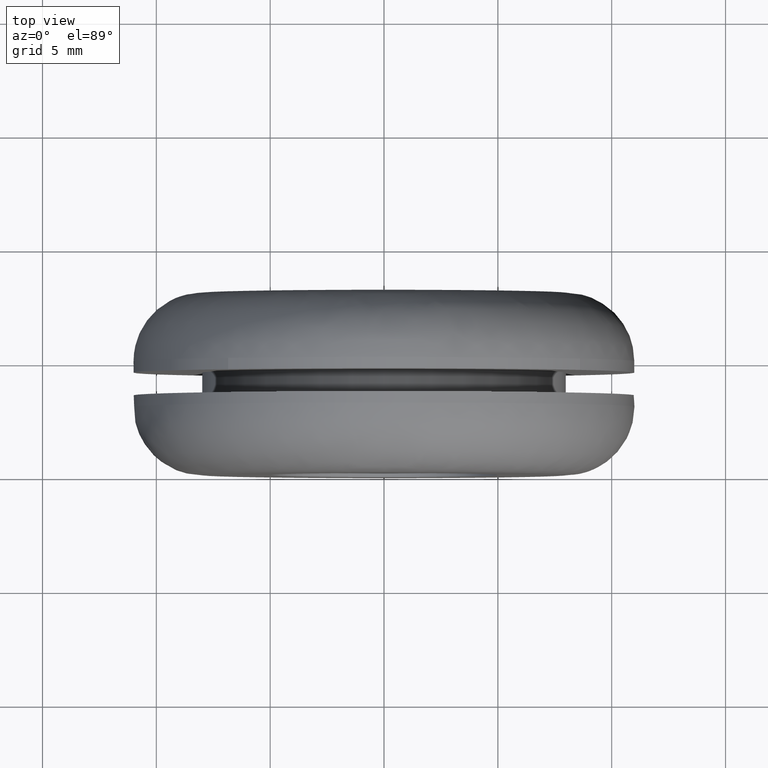
[diagram: clean part render]
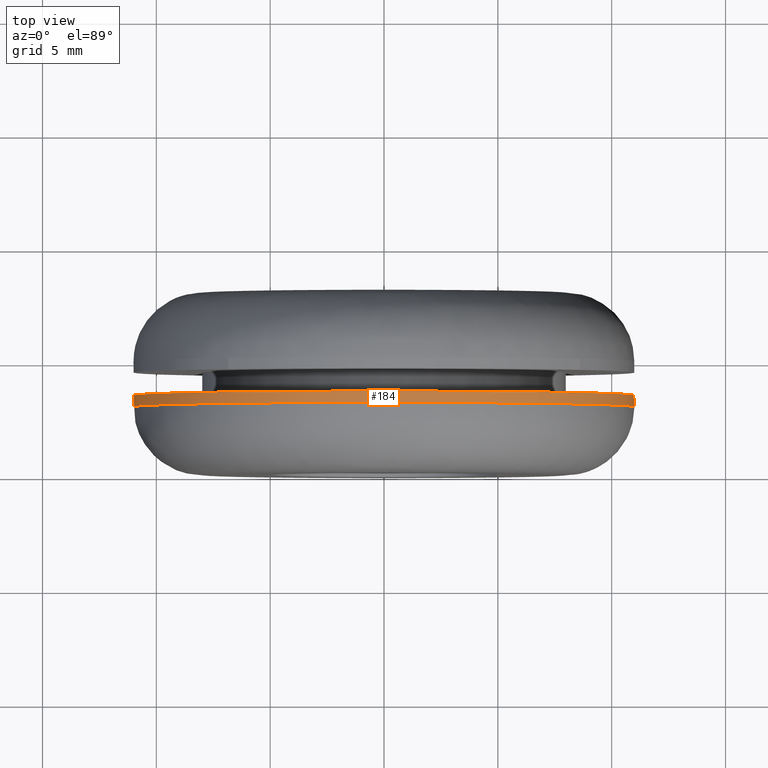
[diagram: same view with one face highlighted and labeled with its STEP entity id]
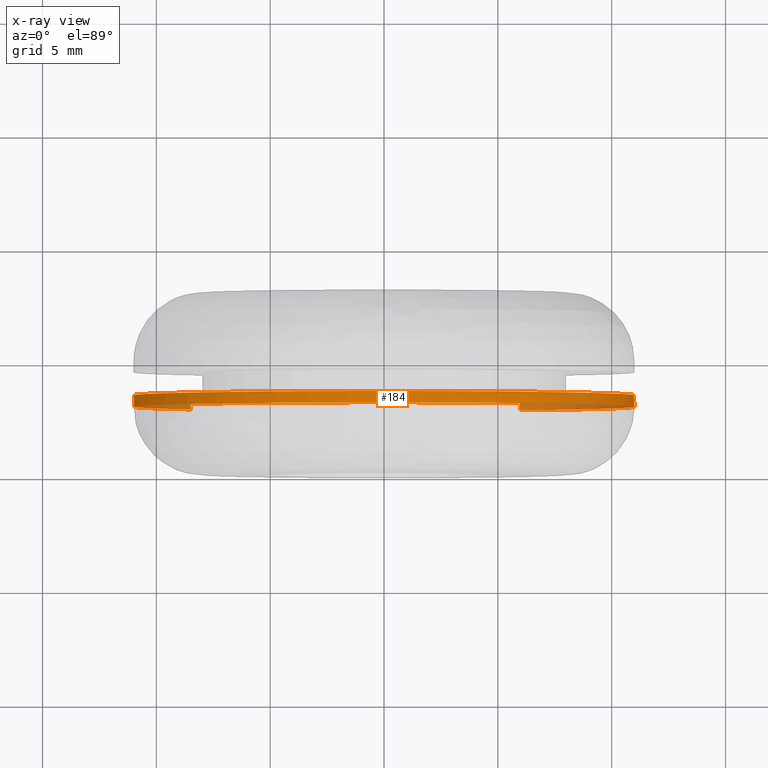
[diagram: x-ray of the same camera — body ghosted, the highlighted face saturated]
A machine part, top view. The second image highlights one B-rep face of the part: STEP entity #184.
The next image is the same camera in x-ray: the body ghosted, the highlighted face saturated — about 12% of this face is hidden behind the body in this view.
In plain terms, the highlighted face is a freeform B-spline surface patch.
Its self-contained STEP definition (entity closure, byte-faithful):
#44=CARTESIAN_POINT('',(5.970017476818081,3.512500000000592,-9.238987570426026));
#45=CARTESIAN_POINT('',(6.505193491859988,3.512500000000591,-8.893169358352523));
#46=CARTESIAN_POINT('',(6.996860423055401,3.512500000000591,-8.487870417264917));
#47=CARTESIAN_POINT('',(15.484730840320312,3.512500000000592,-1.491009994209516));
#48=CARTESIAN_POINT('',(8.487870417264917,3.512500000000591,6.996860423055401));
#49=CARTESIAN_POINT('',(1.491009994209516,3.512500000000592,15.484730840320312));
#50=CARTESIAN_POINT('',(-6.996860423055401,3.512500000000591,8.487870417264917));
#51=CARTESIAN_POINT('',(-15.484730840320312,3.512500000000592,1.491009994209516));
#52=CARTESIAN_POINT('',(-8.487870417264917,3.512500000000591,-6.996860423055401));
#53=CARTESIAN_POINT('',(5.970017476818081,2.987187499975768,-9.238987570426026));
#54=CARTESIAN_POINT('',(6.505193491859988,2.987187499975768,-8.893169358352523));
#55=CARTESIAN_POINT('',(6.996860423055401,2.987187499975767,-8.487870417264917));
#56=CARTESIAN_POINT('',(15.484730840320312,2.987187499975768,-1.491009994209516));
#57=CARTESIAN_POINT('',(8.487870417264917,2.987187499975767,6.996860423055401));
#58=CARTESIAN_POINT('',(1.491009994209516,2.987187499975768,15.484730840320312));
#59=CARTESIAN_POINT('',(-6.996860423055401,2.987187499975767,8.487870417264917));
#60=CARTESIAN_POINT('',(-15.484730840320312,2.987187499975768,1.491009994209516));
#61=CARTESIAN_POINT('',(-8.487870417264917,2.987187499975767,-6.996860423055401));
#69=(BOUNDED_SURFACE()B_SPLINE_SURFACE(2,1,((#44,#53),(#45,#54),(#46,#55),(#47,#56),(#48,#57),(#49,#58),(#50,#59),(#51,#60),(#52,#61)),.UNSPECIFIED.,.F.,.F.,.U.)B_SPLINE_SURFACE_WITH_KNOTS((3,2,2,2,3),(2,2),(0.0,1.458031739553294,19.683428483969472,37.908825228385652,56.134221972801832),(0.0,1.0),.UNSPECIFIED.)GEOMETRIC_REPRESENTATION_ITEM()RATIONAL_B_SPLINE_SURFACE(((0.956886118190660,0.956886118190660),(0.976568542494924,0.976568542494924),(1.0,1.0),(0.707106781186548,0.707106781186548),(1.0,1.0),(0.707106781186548,0.707106781186548),(1.0,1.0),(0.707106781186548,0.707106781186548),(1.0,1.0)))REPRESENTATION_ITEM('')SURFACE());
#70=CARTESIAN_POINT('',(5.970017122025991,2.999999999996160,-9.238987799683866));
#71=VERTEX_POINT('',#70);
#72=CARTESIAN_POINT('',(10.999131486241900,2.999999999976373,-0.138226438722938));
#73=VERTEX_POINT('',#72);
#74=CARTESIAN_POINT('',(5.970017122025991,2.999999999996160,-9.238987799683866));
#75=CARTESIAN_POINT('',(10.924998957870597,2.999999999989205,-6.037195076424144));
#76=CARTESIAN_POINT('',(10.999131486241904,2.999999999976373,-0.138226438722938));
#84=(BOUNDED_CURVE()B_SPLINE_CURVE(2,(#74,#75,#76),.UNSPECIFIED.,.F.,.U.)B_SPLINE_CURVE_WITH_KNOTS((3,3),(0.092934731225705,0.247784295921534),.UNSPECIFIED.)CURVE()GEOMETRIC_REPRESENTATION_ITEM()RATIONAL_B_SPLINE_CURVE((0.863190106682967,0.816652486740030,0.994854295643566))REPRESENTATION_ITEM(''));
#85=EDGE_CURVE('',#71,#73,#84,.T.);
#86=ORIENTED_EDGE('',*,*,#85,.F.);
#87=CARTESIAN_POINT('',(5.970017151710191,3.500000000000000,-9.238987780503120));
#88=VERTEX_POINT('',#87);
#89=CARTESIAN_POINT('',(5.970017151710191,3.500000000000000,-9.238987780503120));
#90=CARTESIAN_POINT('',(5.970017122025991,2.999999999996160,-9.238987799683866));
#91=QUASI_UNIFORM_CURVE('',1,(#89,#90),.UNSPECIFIED.,.F.,.U.);
#92=EDGE_CURVE('',#88,#71,#91,.T.);
#93=ORIENTED_EDGE('',*,*,#92,.F.);
#94=CARTESIAN_POINT('',(0.0,3.500000000000000,11.0));
#95=VERTEX_POINT('',#94);
#96=CARTESIAN_POINT('',(5.970017151710191,3.500000000000000,-9.238987780503120));
#97=CARTESIAN_POINT('',(11.0,3.500000000000000,-5.988731121177693));
#98=CARTESIAN_POINT('',(11.0,3.500000000000000,-1.836910E-016));
#99=CARTESIAN_POINT('',(11.0,3.499999999999999,11.0));
#100=CARTESIAN_POINT('',(0.0,3.500000000000000,11.0));
#108=(BOUNDED_CURVE()B_SPLINE_CURVE(2,(#96,#97,#98,#99,#100),.UNSPECIFIED.,.F.,.U.)B_SPLINE_CURVE_WITH_KNOTS((3,2,3),(0.092934732206239,0.250000000000000,0.500000000000000),.UNSPECIFIED.)CURVE()GEOMETRIC_REPRESENTATION_ITEM()RATIONAL_B_SPLINE_CURVE((0.863190106093599,0.815986592608353,1.0,0.707106781186548,1.0))REPRESENTATION_ITEM(''));
#109=EDGE_CURVE('',#88,#95,#108,.T.);
#110=ORIENTED_EDGE('',*,*,#109,.T.);
#111=CARTESIAN_POINT('',(-8.487870567302275,3.500000000000000,-6.996860241045525));
#112=VERTEX_POINT('',#111);
#113=CARTESIAN_POINT('',(0.0,3.500000000000000,11.0));
#114=CARTESIAN_POINT('',(-11.0,3.499999999999999,11.0));
#115=CARTESIAN_POINT('',(-11.0,3.500000000000000,-1.836910E-016));
#116=CARTESIAN_POINT('',(-11.0,3.500000000000000,-3.949403286060939));
#117=CARTESIAN_POINT('',(-8.487870567302275,3.500000000000000,-6.996860241045525));
#125=(BOUNDED_CURVE()B_SPLINE_CURVE(2,(#113,#114,#115,#116,#117),.UNSPECIFIED.,.F.,.U.)B_SPLINE_CURVE_WITH_KNOTS((3,2,3),(0.500000000000000,0.750000000000000,0.860504619373458),.UNSPECIFIED.)CURVE()GEOMETRIC_REPRESENTATION_ITEM()RATIONAL_B_SPLINE_CURVE((1.0,0.707106781186548,1.0,0.870535785351809,0.855522720801075))REPRESENTATION_ITEM(''));
#126=EDGE_CURVE('',#95,#112,#125,.T.);
#127=ORIENTED_EDGE('',*,*,#126,.T.);
#128=CARTESIAN_POINT('',(-8.487870932863761,2.999999999999981,-6.996859797583897));
#129=VERTEX_POINT('',#128);
#130=CARTESIAN_POINT('',(-8.487870567302275,3.500000000000000,-6.996860241045525));
#131=CARTESIAN_POINT('',(-8.487870932863761,2.999999999999981,-6.996859797583897));
#132=QUASI_UNIFORM_CURVE('',1,(#130,#131),.UNSPECIFIED.,.F.,.U.);
#133=EDGE_CURVE('',#112,#129,#132,.T.);
#134=ORIENTED_EDGE('',*,*,#133,.T.);
#135=CARTESIAN_POINT('',(-10.973222412244651,2.999999999976504,0.767065767331439));
#136=VERTEX_POINT('',#135);
#137=CARTESIAN_POINT('',(-10.973222412244642,2.999999999976505,0.767065767331439));
#138=CARTESIAN_POINT('',(-11.000000000000004,3.000000000000000,0.384000274623409));
#139=CARTESIAN_POINT('',(-11.0,3.0,-1.836910E-016));
#140=CARTESIAN_POINT('',(-11.0,3.000000000000000,-3.949402637264811));
#141=CARTESIAN_POINT('',(-8.487870932863761,2.999999999999981,-6.996859797583897));
#149=(BOUNDED_CURVE()B_SPLINE_CURVE(2,(#137,#138,#139,#140,#141),.UNSPECIFIED.,.F.,.U.)B_SPLINE_CURVE_WITH_KNOTS((3,2,3),(0.737833686535085,0.750000000000000,0.860504603570302),.UNSPECIFIED.)CURVE()GEOMETRIC_REPRESENTATION_ITEM()RATIONAL_B_SPLINE_CURVE((0.972879876386962,0.985746277152671,1.0,0.870535803866359,0.855522725095084))REPRESENTATION_ITEM(''));
#150=EDGE_CURVE('',#136,#129,#149,.T.);
#151=ORIENTED_EDGE('',*,*,#150,.F.);
#152=CARTESIAN_POINT('',(0.0,3.0,11.0));
#153=VERTEX_POINT('',#152);
#154=CARTESIAN_POINT('',(0.0,3.0,11.0));
#155=CARTESIAN_POINT('',(-10.257905319929851,3.000000000000001,11.0));
#156=CARTESIAN_POINT('',(-10.973222412244647,2.999999999976504,0.767065767331439));
#164=(BOUNDED_CURVE()B_SPLINE_CURVE(2,(#154,#155,#156),.UNSPECIFIED.,.F.,.U.)B_SPLINE_CURVE_WITH_KNOTS((3,3),(0.500000000000000,0.737833686535085),.UNSPECIFIED.)CURVE()GEOMETRIC_REPRESENTATION_ITEM()RATIONAL_B_SPLINE_CURVE((1.0,0.721360504033877,0.972879876386962))REPRESENTATION_ITEM(''));
#165=EDGE_CURVE('',#153,#136,#164,.T.);
#166=ORIENTED_EDGE('',*,*,#165,.F.);
#167=CARTESIAN_POINT('',(10.999131486241900,2.999999999976372,-0.138226438722938));
#168=CARTESIAN_POINT('',(11.000000000000005,3.000000000000000,-0.069115947916848));
#169=CARTESIAN_POINT('',(11.0,3.0,-1.836910E-016));
#170=CARTESIAN_POINT('',(11.0,3.0,11.0));
#171=CARTESIAN_POINT('',(0.0,3.0,11.0));
#179=(BOUNDED_CURVE()B_SPLINE_CURVE(2,(#167,#168,#169,#170,#171),.UNSPECIFIED.,.F.,.U.)B_SPLINE_CURVE_WITH_KNOTS((3,2,3),(0.247784295921534,0.250000000000000,0.500000000000000),.UNSPECIFIED.)CURVE()GEOMETRIC_REPRESENTATION_ITEM()RATIONAL_B_SPLINE_CURVE((0.994854295643566,0.997404141202081,1.0,0.707106781186548,1.0))REPRESENTATION_ITEM(''));
#180=EDGE_CURVE('',#73,#153,#179,.T.);
#181=ORIENTED_EDGE('',*,*,#180,.F.);
#182=EDGE_LOOP('',(#86,#93,#110,#127,#134,#151,#166,#181));
#183=FACE_OUTER_BOUND('',#182,.T.);
#184=ADVANCED_FACE('',(#183),#69,.T.);